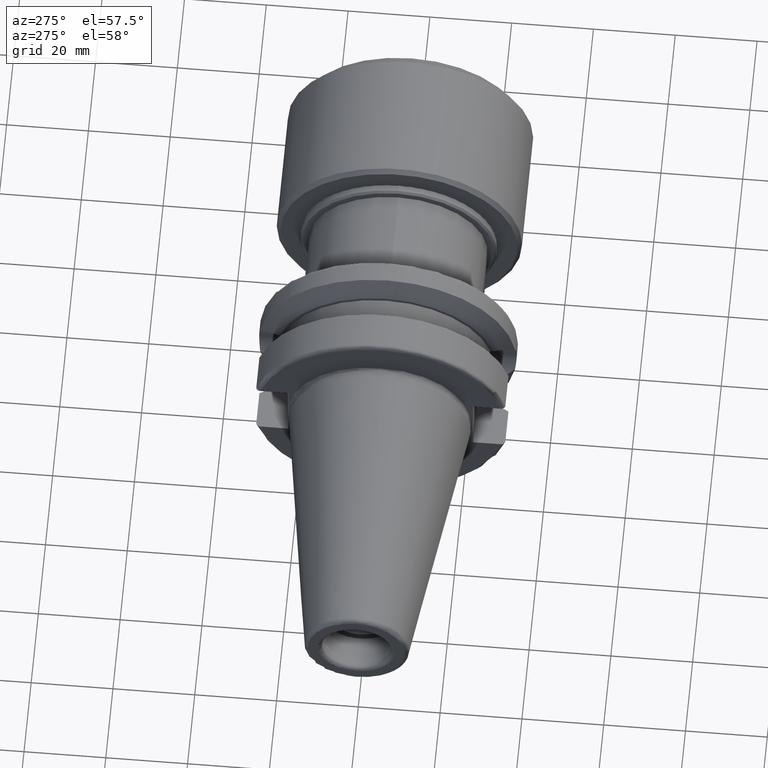
[diagram: clean part render]
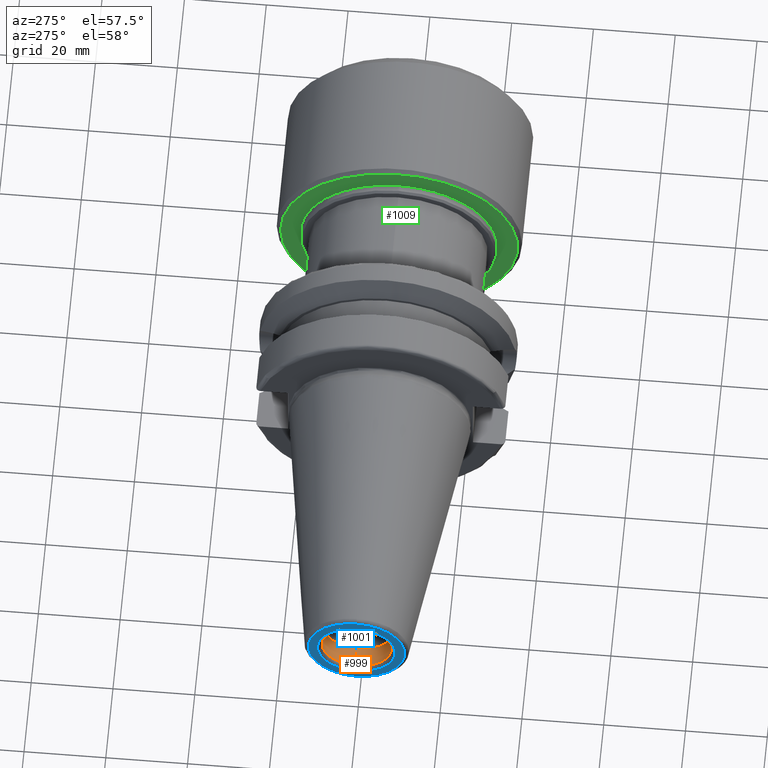
[diagram: same view with three faces highlighted in distinct colors, each labeled with its STEP entity id]
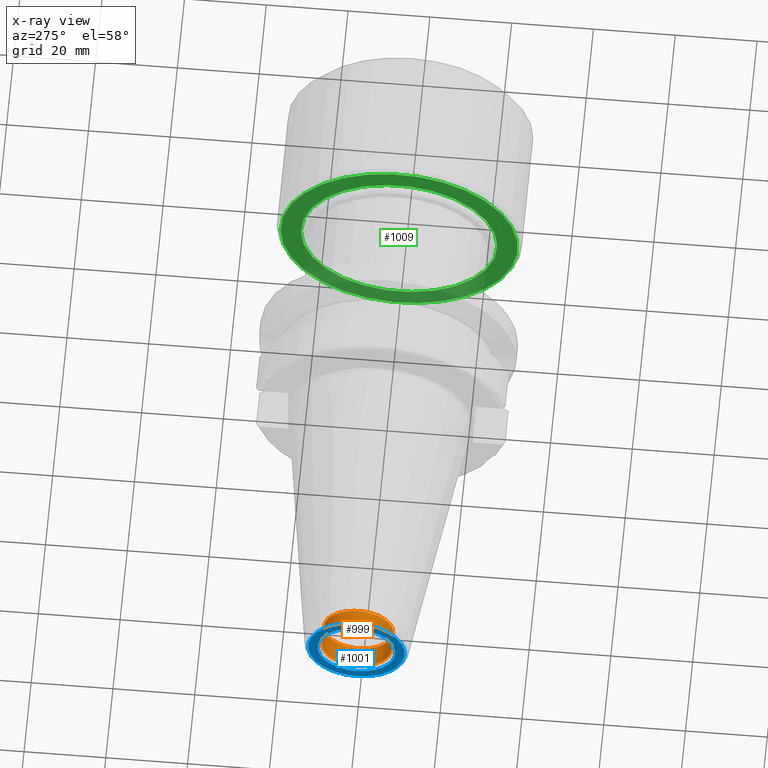
[diagram: x-ray of the same camera — body ghosted, the three highlighted faces saturated]
A machine part, auxiliary view with three faces highlighted in distinct colors.
The next image is the same camera in x-ray (body ghosted, the three faces saturated) — at least one of them is partly hidden behind the body in this view.
Their STEP definitions:

[orange] entity #999 — the highlighted cylindrical surface (bore or boss wall) has radius 8.5 mm, axis along (1, 0, 0).
#107=CYLINDRICAL_SURFACE('',#1191,8.5);
#160=FACE_OUTER_BOUND('',#227,.T.);
#227=EDGE_LOOP('',(#894,#895,#896,#897,#898));
#288=LINE('',#1901,#340);
#340=VECTOR('',#1483,8.5);
#402=CIRCLE('',#1190,8.5);
#403=CIRCLE('',#1192,8.5);
#404=CIRCLE('',#1193,8.5);
#496=VERTEX_POINT('',#1896);
#497=VERTEX_POINT('',#1900);
#498=VERTEX_POINT('',#1902);
#631=EDGE_CURVE('',#496,#496,#402,.T.);
#632=EDGE_CURVE('',#496,#497,#288,.T.);
#633=EDGE_CURVE('',#498,#497,#403,.T.);
#634=EDGE_CURVE('',#497,#498,#404,.T.);
#894=ORIENTED_EDGE('',*,*,#631,.T.);
#895=ORIENTED_EDGE('',*,*,#632,.T.);
#896=ORIENTED_EDGE('',*,*,#633,.F.);
#897=ORIENTED_EDGE('',*,*,#634,.F.);
#898=ORIENTED_EDGE('',*,*,#632,.F.);
#999=ADVANCED_FACE('',(#160),#107,.F.);
#1190=AXIS2_PLACEMENT_3D('',#1898,#1479,#1480);
#1191=AXIS2_PLACEMENT_3D('',#1899,#1481,#1482);
#1192=AXIS2_PLACEMENT_3D('',#1903,#1484,#1485);
#1193=AXIS2_PLACEMENT_3D('',#1904,#1486,#1487);
#1479=DIRECTION('center_axis',(1.,0.,0.));
#1480=DIRECTION('ref_axis',(0.,0.,-1.));
#1481=DIRECTION('center_axis',(1.,0.,0.));
#1482=DIRECTION('ref_axis',(0.,1.,0.));
#1483=DIRECTION('',(-1.,0.,0.));
#1484=DIRECTION('center_axis',(1.,0.,0.));
#1485=DIRECTION('ref_axis',(0.,0.,-1.));
#1486=DIRECTION('center_axis',(1.,0.,0.));
#1487=DIRECTION('ref_axis',(0.,0.,-1.));
#1896=CARTESIAN_POINT('',(-59.5196152422707,-8.5,-1.04094977927525E-15));
#1898=CARTESIAN_POINT('Origin',(-59.5196152422707,0.,0.));
#1899=CARTESIAN_POINT('Origin',(-61.9598076211353,0.,0.));
#1900=CARTESIAN_POINT('',(-64.4,-8.5,-1.04094977927525E-15));
#1901=CARTESIAN_POINT('',(-61.9598076211353,-8.5,-1.04094977927525E-15));
#1902=CARTESIAN_POINT('',(-64.4,-1.04094977927525E-15,8.5));
#1903=CARTESIAN_POINT('Origin',(-64.4,0.,0.));
#1904=CARTESIAN_POINT('Origin',(-64.4,0.,0.));

[blue] entity #1001 — the highlighted planar face has unit normal (-1, 0, 0).
#68=FACE_BOUND('',#230,.T.);
#89=PLANE('',#1197);
#162=FACE_OUTER_BOUND('',#229,.T.);
#229=EDGE_LOOP('',(#904));
#230=EDGE_LOOP('',(#905));
#386=CIRCLE('',#1159,11.8227555970304);
#405=CIRCLE('',#1195,9.5);
#488=VERTEX_POINT('',#1852);
#499=VERTEX_POINT('',#1906);
#610=EDGE_CURVE('',#488,#488,#386,.T.);
#635=EDGE_CURVE('',#499,#499,#405,.T.);
#904=ORIENTED_EDGE('',*,*,#610,.F.);
#905=ORIENTED_EDGE('',*,*,#635,.T.);
#1001=ADVANCED_FACE('',(#162,#68),#89,.T.);
#1159=AXIS2_PLACEMENT_3D('',#1854,#1412,#1413);
#1195=AXIS2_PLACEMENT_3D('',#1907,#1490,#1491);
#1197=AXIS2_PLACEMENT_3D('',#1909,#1494,#1495);
#1412=DIRECTION('center_axis',(1.,0.,0.));
#1413=DIRECTION('ref_axis',(0.,0.,-1.));
#1490=DIRECTION('center_axis',(1.,0.,0.));
#1491=DIRECTION('ref_axis',(0.,0.,-1.));
#1494=DIRECTION('center_axis',(-1.,0.,0.));
#1495=DIRECTION('ref_axis',(0.,0.,1.));
#1852=CARTESIAN_POINT('',(-65.4,-1.44786997990048E-15,11.8227555970304));
#1854=CARTESIAN_POINT('Origin',(-65.4,0.,0.));
#1906=CARTESIAN_POINT('',(-65.4,-1.16341445918999E-15,9.5));
#1907=CARTESIAN_POINT('Origin',(-65.4,0.,0.));
#1909=CARTESIAN_POINT('Origin',(-65.4,11.8227555970304,0.));

[green] entity #1009 — the highlighted planar face has unit normal (-1, 0, 0).
#71=FACE_BOUND('',#241,.T.);
#92=PLANE('',#1216);
#170=FACE_OUTER_BOUND('',#240,.T.);
#240=EDGE_LOOP('',(#934));
#241=EDGE_LOOP('',(#935));
#410=CIRCLE('',#1205,24.);
#416=CIRCLE('',#1215,29.);
#503=VERTEX_POINT('',#1921);
#509=VERTEX_POINT('',#1940);
#642=EDGE_CURVE('',#503,#503,#410,.T.);
#651=EDGE_CURVE('',#509,#509,#416,.T.);
#934=ORIENTED_EDGE('',*,*,#651,.F.);
#935=ORIENTED_EDGE('',*,*,#642,.T.);
#1009=ADVANCED_FACE('',(#170,#71),#92,.T.);
#1205=AXIS2_PLACEMENT_3D('',#1923,#1512,#1513);
#1215=AXIS2_PLACEMENT_3D('',#1942,#1535,#1536);
#1216=AXIS2_PLACEMENT_3D('',#1943,#1537,#1538);
#1512=DIRECTION('center_axis',(1.,0.,0.));
#1513=DIRECTION('ref_axis',(0.,1.,0.));
#1535=DIRECTION('center_axis',(1.,0.,0.));
#1536=DIRECTION('ref_axis',(0.,-1.,0.));
#1537=DIRECTION('center_axis',(-1.,0.,0.));
#1538=DIRECTION('ref_axis',(0.,0.,1.));
#1921=CARTESIAN_POINT('',(0.,-24.,2.93915231795365E-15));
#1923=CARTESIAN_POINT('Origin',(0.,0.,0.));
#1940=CARTESIAN_POINT('',(0.,29.,3.55147571752732E-15));
#1942=CARTESIAN_POINT('Origin',(0.,0.,0.));
#1943=CARTESIAN_POINT('Origin',(0.,30.,0.));